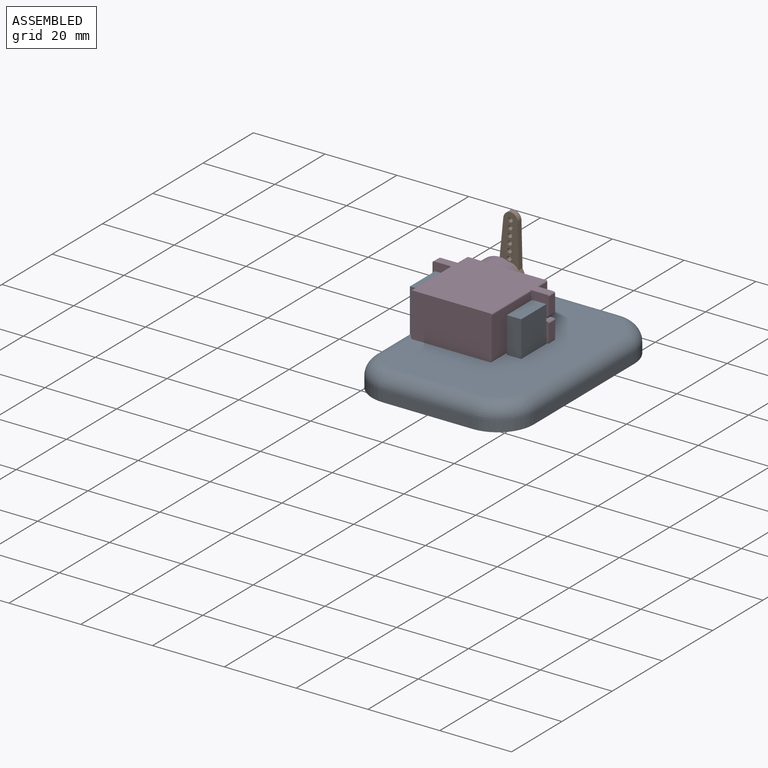
[diagram: assembled view]
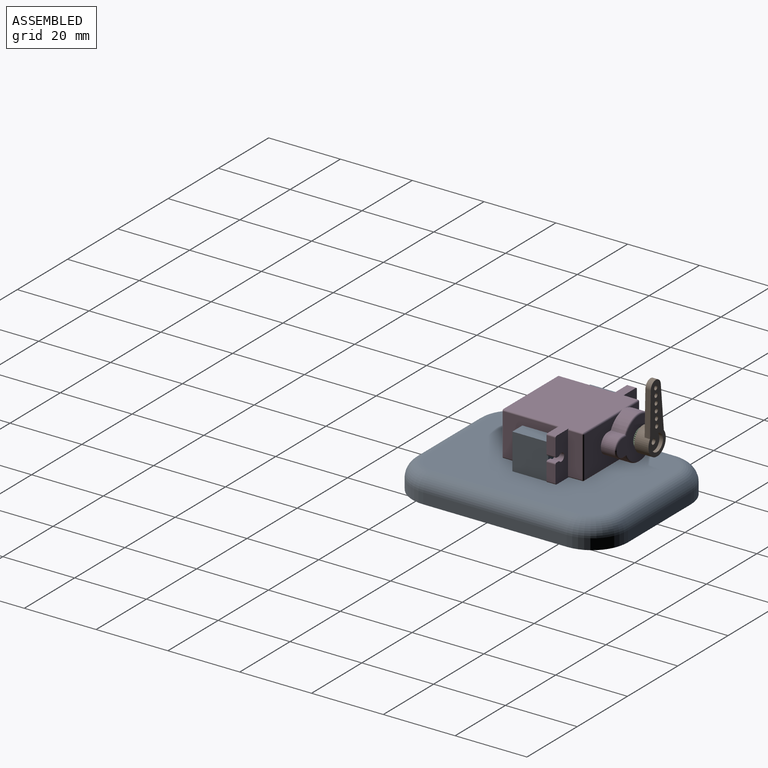
[diagram: assembled view, second angle]
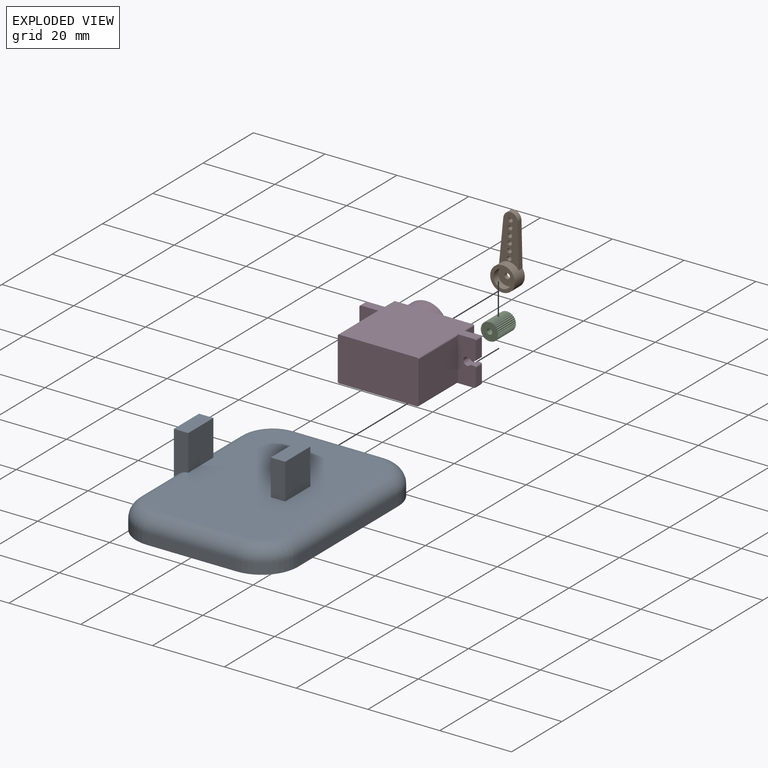
[diagram: exploded view]
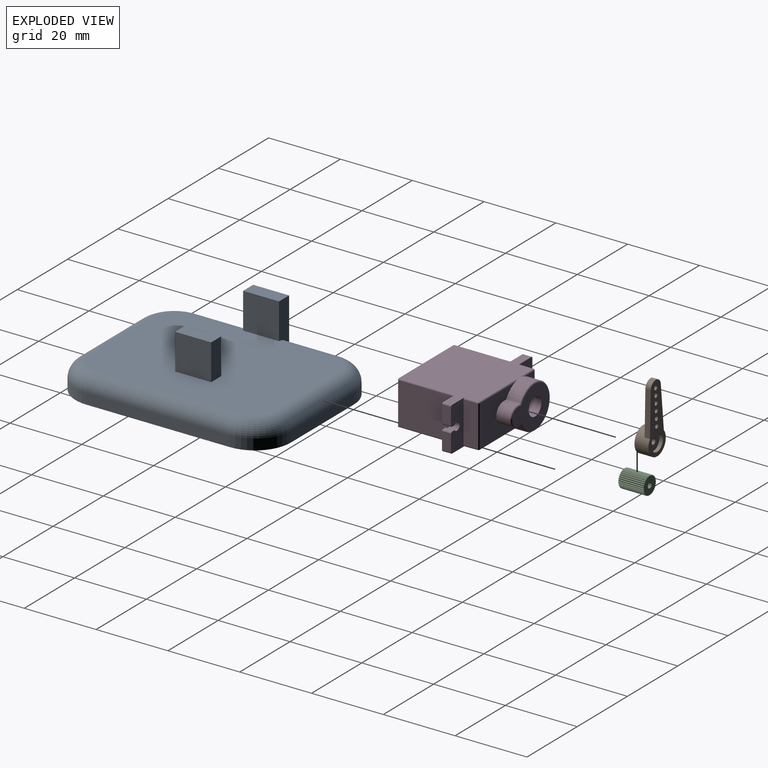
[diagram: exploded view, second angle]
ASSEMBLY  parts=4 mates=3
PART A: 28 faces, bbox 46.6x61.6x17 mm
  f0: plane 52x37mm, normal (0,0,1), area 1853.1mm2, adj f7,f8,f9,f10,f13,f19,f20,f21
  f1: plane 25x3mm, normal (0,-1,0), area 75mm2, adj f2,f15,f16,f21
  f2: plane 60x45mm, normal (0,0,-1), area 2614.2mm2, adj f1,f3,f4,f5,f15,f16,f17,f18
  f3: plane 40x3mm, normal (1,0,0), area 120mm2, adj f2,f16,f17,f23
  f4: plane 40x17mm, normal (-1,0,0), area 260mm2, adj f2,f11,f12,f14,f15,f18,f19,f27
  f5: plane 25x3mm, normal (0,1,0), area 75mm2, adj f2,f17,f18,f25
  f6: plane 10x4mm, normal (0,0,1), area 40mm2, adj f7,f8,f9,f10
  f7: plane 10x4mm, normal (0,-1,0), area 40mm2, adj f0,f6,f8,f9
  f8: plane 10x10mm, normal (1,0,0), area 100mm2, adj f0,f6,f7,f10
  f9: plane 10x10mm, normal (-1,0,0), area 100mm2, adj f0,f6,f7,f10
  f10: plane 10x4mm, normal (0,1,0), area 40mm2, adj f0,f6,f8,f9
  f11: plane 10x4mm, normal (0,0,1), area 40mm2, adj f4,f12,f13,f14
  f12: plane 14x4mm, normal (0,1,0), area 43.4mm2, adj f4,f11,f13,f27
  f13: plane 10x10mm, normal (1,0,0), area 100mm2, adj f0,f11,f12,f14
  f14: plane 14x4mm, normal (0,-1,0), area 43.4mm2, adj f4,f11,f13,f19
  f15: cylinder r=10mm len=10mm, axis (0,0,1), area 47.1mm2, adj f1,f2,f4,f20
  f16: cylinder r=10mm len=10mm, axis (0,0,-1), area 47.1mm2, adj f1,f2,f3,f22
  f17: cylinder r=10mm len=10mm, axis (0,0,1), area 47.1mm2, adj f2,f3,f5,f24
  f18: cylinder r=10mm len=10mm, axis (0,0,-1), area 47.1mm2, adj f2,f4,f5,f26
  f19: cylinder r=4mm len=15mm, axis (0,1,0), area 94.2mm2, adj f0,f4,f14,f20
  f20: torus R=6mm, axis (0,0,1), area 84.4mm2, adj f0,f15,f19,f21
  f21: cylinder r=4mm len=25mm, axis (-1,0,0), area 157.1mm2, adj f0,f1,f20,f22
  f22: torus R=6mm, axis (0,0,1), area 84.4mm2, adj f0,f16,f21,f23
  f23: cylinder r=4mm len=40mm, axis (0,-1,0), area 251.3mm2, adj f0,f3,f22,f24
  f24: torus R=6mm, axis (0,0,1), area 84.4mm2, adj f0,f17,f23,f25
  f25: cylinder r=4mm len=25mm, axis (1,0,0), area 157.1mm2, adj f0,f5,f24,f26
  f26: torus R=6mm, axis (0,0,1), area 84.4mm2, adj f0,f18,f25,f27
  f27: cylinder r=4mm len=15mm, axis (0,1,0), area 94.2mm2, adj f0,f4,f12,f26
PART B: 18 faces, bbox 19.5x6.9x3.9 mm
  f0: plane 4.65x4.65mm, normal (0,0,1), area 15.2mm2, adj f1,f7
  f1: cylinder r=0.75mm len=1.5mm, axis (0,0,-1), area 4.9mm2, adj f0,f2
  f2: plane 5x5mm, normal (0,0,-1), area 17.9mm2, adj f1,f3
  f3: cylinder r=2.5mm len=5mm, axis (0,0,-1), area 29.1mm2, adj f2,f4
  f4: plane 6.9x6.9mm, normal (0,0,-1), area 17.8mm2, adj f3,f5
  f5: cylinder r=3.45mm len=6.9mm, axis (0,0,-1), area 75mm2, adj f4,f6,f8,f9,f11
  f6: plane 19.5x6.9mm, normal (0,0,1), area 71.6mm2, adj f5,f7,f8,f9,f10,f12,f13,f14
  f7: cylinder r=2.32mm len=4.65mm, axis (0,0,-1), area 14.6mm2, adj f0,f6
  f8: plane 12.09x1.5mm, normal (0.06,1,0), area 18.2mm2, adj f5,f6,f10,f11
  f9: plane 12.09x1.5mm, normal (0.06,-1,0), area 18.2mm2, adj f5,f6,f10,f11
  f10: cylinder r=2mm len=4mm, axis (0,0,1), area 9.1mm2, adj f6,f8,f9,f11
  f11: plane 13.97x5.5mm, normal (0,0,-1), area 51.2mm2, adj f5,f8,f9,f10,f12,f13,f14,f15
  f12: cylinder r=0.6mm len=1.5mm, axis (0,0,1), area 5.7mm2, adj f6,f11
  f13: cylinder r=0.6mm len=1.5mm, axis (0,0,1), area 5.7mm2, adj f6,f11
  f14: cylinder r=0.6mm len=1.5mm, axis (0,0,1), area 5.7mm2, adj f6,f11
  f15: cylinder r=0.6mm len=1.5mm, axis (0,0,1), area 5.7mm2, adj f6,f11
  f16: cylinder r=0.6mm len=1.5mm, axis (0,0,1), area 5.7mm2, adj f6,f11
  f17: cylinder r=0.6mm len=1.5mm, axis (0,0,1), area 5.7mm2, adj f6,f11
PART C: 99 faces, bbox 5x5x7.1 mm
  f0: plane 5x5mm, normal (0,0,-1), area 16.5mm2, adj f1,f2,f3,f4,f5,f6,f7,f8
  f1: plane 7.05x0.2mm, normal (-0.8,0.6,0), area 1.7mm2, adj f0,f2,f94,f95
  f2: cylinder r=0.08mm len=7.05mm, axis (0,0,-1), area 0.9mm2, adj f0,f1,f3,f94
  f3: plane 7.05x0.21mm, normal (-0.51,-0.86,0), area 1.7mm2, adj f0,f2,f4,f94
  f4: plane 7.05x0.22mm, normal (-0.9,0.43,0), area 1.7mm2, adj f0,f3,f5,f94
  f5: cylinder r=0.08mm len=7.05mm, axis (0,0,-1), area 0.9mm2, adj f0,f4,f6,f94
  f6: plane 7.05x0.23mm, normal (-0.33,-0.94,0), area 1.7mm2, adj f0,f5,f7,f94
  f7: plane 7.05x0.24mm, normal (-0.97,0.25,0), area 1.7mm2, adj f0,f6,f8,f94
  f8: cylinder r=0.08mm len=7.05mm, axis (0,0,-1), area 0.9mm2, adj f0,f7,f9,f94
  f9: plane 7.05x0.25mm, normal (-0.14,-0.99,0), area 1.7mm2, adj f0,f8,f10,f94
  f10: plane 7.05x0.25mm, normal (-1,0.05,0), area 1.7mm2, adj f0,f9,f11,f94
  f11: cylinder r=0.08mm len=7.05mm, axis (0,0,-1), area 0.9mm2, adj f0,f10,f12,f94
  f12: plane 7.05x0.25mm, normal (0.05,-1,0), area 1.7mm2, adj f0,f11,f13,f94
  f13: plane 7.05x0.25mm, normal (-0.99,-0.14,0), area 1.7mm2, adj f0,f12,f14,f94
  f14: cylinder r=0.08mm len=7.05mm, axis (0,0,-1), area 0.9mm2, adj f0,f13,f15,f94
  f15: plane 7.05x0.24mm, normal (0.25,-0.97,0), area 1.7mm2, adj f0,f14,f16,f94
  f16: plane 7.05x0.23mm, normal (-0.94,-0.33,0), area 1.7mm2, adj f0,f15,f17,f94
  f17: cylinder r=0.08mm len=7.05mm, axis (0,0,-1), area 0.9mm2, adj f0,f16,f18,f94
  f18: plane 7.05x0.22mm, normal (0.43,-0.9,0), area 1.7mm2, adj f0,f17,f19,f94
  f19: plane 7.05x0.21mm, normal (-0.86,-0.51,0), area 1.7mm2, adj f0,f18,f20,f94
  f20: cylinder r=0.08mm len=7.05mm, axis (0,0,-1), area 0.9mm2, adj f0,f19,f21,f94
  f21: plane 7.05x0.2mm, normal (0.6,-0.8,0), area 1.7mm2, adj f0,f20,f22,f94
  f22: plane 7.05x0.18mm, normal (-0.74,-0.67,0), area 1.7mm2, adj f0,f21,f23,f94
  f23: cylinder r=0.08mm len=7.05mm, axis (0,0,-1), area 0.9mm2, adj f0,f22,f24,f94
  f24: plane 7.05x0.18mm, normal (0.74,-0.67,0), area 1.7mm2, adj f0,f23,f25,f94
  f25: plane 7.05x0.2mm, normal (-0.6,-0.8,0), area 1.7mm2, adj f0,f24,f26,f94
  f26: cylinder r=0.08mm len=7.05mm, axis (0,0,-1), area 0.9mm2, adj f0,f25,f27,f94
  f27: plane 7.05x0.21mm, normal (0.86,-0.51,0), area 1.7mm2, adj f0,f26,f28,f94
  f28: plane 7.05x0.22mm, normal (-0.43,-0.9,0), area 1.7mm2, adj f0,f27,f29,f94
  f29: cylinder r=0.08mm len=7.05mm, axis (0,0,-1), area 0.9mm2, adj f0,f28,f30,f94
  f30: plane 7.05x0.23mm, normal (0.94,-0.33,0), area 1.7mm2, adj f0,f29,f31,f94
  f31: plane 7.05x0.24mm, normal (-0.25,-0.97,0), area 1.7mm2, adj f0,f30,f32,f94
  f32: cylinder r=0.08mm len=7.05mm, axis (0,0,-1), area 0.9mm2, adj f0,f31,f33,f94
  f33: plane 7.05x0.25mm, normal (0.99,-0.14,0), area 1.7mm2, adj f0,f32,f34,f94
  f34: plane 7.05x0.25mm, normal (-0.05,-1,0), area 1.7mm2, adj f0,f33,f35,f94
  f35: cylinder r=0.08mm len=7.05mm, axis (0,0,-1), area 0.9mm2, adj f0,f34,f36,f94
  f36: plane 7.05x0.25mm, normal (1,0.05,0), area 1.7mm2, adj f0,f35,f37,f94
  f37: plane 7.05x0.25mm, normal (0.14,-0.99,0), area 1.7mm2, adj f0,f36,f38,f94
  f38: cylinder r=0.08mm len=7.05mm, axis (0,0,-1), area 0.9mm2, adj f0,f37,f39,f94
  f39: plane 7.05x0.24mm, normal (0.97,0.25,0), area 1.7mm2, adj f0,f38,f40,f94
  f40: plane 7.05x0.23mm, normal (0.33,-0.94,0), area 1.7mm2, adj f0,f39,f41,f94
  f41: cylinder r=0.08mm len=7.05mm, axis (0,0,-1), area 0.9mm2, adj f0,f40,f42,f94
  f42: plane 7.05x0.22mm, normal (0.9,0.43,0), area 1.7mm2, adj f0,f41,f43,f94
  f43: plane 7.05x0.21mm, normal (0.51,-0.86,0), area 1.7mm2, adj f0,f42,f44,f94
  f44: cylinder r=0.08mm len=7.05mm, axis (0,0,-1), area 0.9mm2, adj f0,f43,f45,f94
  f45: plane 7.05x0.2mm, normal (0.8,0.6,0), area 1.7mm2, adj f0,f44,f46,f94
  f46: plane 7.05x0.18mm, normal (0.67,-0.74,0), area 1.7mm2, adj f0,f45,f47,f94
  f47: cylinder r=0.08mm len=7.05mm, axis (0,0,-1), area 0.9mm2, adj f0,f46,f48,f94
  f48: plane 7.05x0.18mm, normal (0.67,0.74,0), area 1.7mm2, adj f0,f47,f49,f94
  f49: plane 7.05x0.2mm, normal (0.8,-0.6,0), area 1.7mm2, adj f0,f48,f50,f94
  f50: cylinder r=0.08mm len=7.05mm, axis (0,0,-1), area 0.9mm2, adj f0,f49,f51,f94
  f51: plane 7.05x0.21mm, normal (0.51,0.86,0), area 1.7mm2, adj f0,f50,f52,f94
  f52: plane 7.05x0.22mm, normal (0.9,-0.43,0), area 1.7mm2, adj f0,f51,f53,f94
  f53: cylinder r=0.08mm len=7.05mm, axis (0,0,-1), area 0.9mm2, adj f0,f52,f54,f94
  f54: plane 7.05x0.23mm, normal (0.33,0.94,0), area 1.7mm2, adj f0,f53,f55,f94
  f55: plane 7.05x0.24mm, normal (0.97,-0.25,0), area 1.7mm2, adj f0,f54,f56,f94
  f56: cylinder r=0.08mm len=7.05mm, axis (0,0,-1), area 0.9mm2, adj f0,f55,f57,f94
  f57: plane 7.05x0.25mm, normal (0.14,0.99,0), area 1.7mm2, adj f0,f56,f58,f94
  f58: plane 7.05x0.25mm, normal (1,-0.05,0), area 1.7mm2, adj f0,f57,f59,f94
  f59: cylinder r=0.08mm len=7.05mm, axis (0,0,-1), area 0.9mm2, adj f0,f58,f60,f94
  f60: plane 7.05x0.25mm, normal (-0.05,1,0), area 1.7mm2, adj f0,f59,f61,f94
  f61: plane 7.05x0.25mm, normal (0.99,0.14,0), area 1.7mm2, adj f0,f60,f62,f94
  f62: cylinder r=0.08mm len=7.05mm, axis (0,0,-1), area 0.9mm2, adj f0,f61,f63,f94
  f63: plane 7.05x0.24mm, normal (-0.25,0.97,0), area 1.7mm2, adj f0,f62,f64,f94
  f64: plane 7.05x0.23mm, normal (0.94,0.33,0), area 1.7mm2, adj f0,f63,f65,f94
  f65: cylinder r=0.08mm len=7.05mm, axis (0,0,-1), area 0.9mm2, adj f0,f64,f66,f94
  f66: plane 7.05x0.22mm, normal (-0.43,0.9,0), area 1.7mm2, adj f0,f65,f67,f94
  f67: plane 7.05x0.21mm, normal (0.86,0.51,0), area 1.7mm2, adj f0,f66,f68,f94
  f68: cylinder r=0.08mm len=7.05mm, axis (0,0,-1), area 0.9mm2, adj f0,f67,f69,f94
  f69: plane 7.05x0.2mm, normal (-0.6,0.8,0), area 1.7mm2, adj f0,f68,f70,f94
  f70: plane 7.05x0.18mm, normal (0.74,0.67,0), area 1.7mm2, adj f0,f69,f71,f94
  f71: cylinder r=0.08mm len=7.05mm, axis (0,0,-1), area 0.9mm2, adj f0,f70,f72,f94
  f72: plane 7.05x0.18mm, normal (-0.74,0.67,0), area 1.7mm2, adj f0,f71,f73,f94
  f73: plane 7.05x0.2mm, normal (0.6,0.8,0), area 1.7mm2, adj f0,f72,f74,f94
  f74: cylinder r=0.08mm len=7.05mm, axis (0,0,-1), area 0.9mm2, adj f0,f73,f75,f94
  f75: plane 7.05x0.21mm, normal (-0.86,0.51,0), area 1.7mm2, adj f0,f74,f76,f94
  f76: plane 7.05x0.22mm, normal (0.43,0.9,0), area 1.7mm2, adj f0,f75,f77,f94
  f77: cylinder r=0.08mm len=7.05mm, axis (0,0,-1), area 0.9mm2, adj f0,f76,f78,f94
  f78: plane 7.05x0.23mm, normal (-0.94,0.33,0), area 1.7mm2, adj f0,f77,f79,f94
  f79: plane 7.05x0.24mm, normal (0.25,0.97,0), area 1.7mm2, adj f0,f78,f80,f94
  f80: cylinder r=0.08mm len=7.05mm, axis (0,0,-1), area 0.9mm2, adj f0,f79,f81,f94
  f81: plane 7.05x0.25mm, normal (-0.99,0.14,0), area 1.7mm2, adj f0,f80,f82,f94
  f82: plane 7.05x0.25mm, normal (0.05,1,0), area 1.7mm2, adj f0,f81,f83,f94
  f83: cylinder r=0.08mm len=7.05mm, axis (0,0,-1), area 0.9mm2, adj f0,f82,f84,f94
  f84: plane 7.05x0.25mm, normal (-1,-0.05,0), area 1.7mm2, adj f0,f83,f85,f94
  f85: plane 7.05x0.25mm, normal (-0.14,0.99,0), area 1.7mm2, adj f0,f84,f86,f94
  f86: cylinder r=0.08mm len=7.05mm, axis (0,0,-1), area 0.9mm2, adj f0,f85,f87,f94
  f87: plane 7.05x0.24mm, normal (-0.97,-0.25,0), area 1.7mm2, adj f0,f86,f88,f94
  f88: plane 7.05x0.23mm, normal (-0.33,0.94,0), area 1.7mm2, adj f0,f87,f89,f94
  f89: cylinder r=0.08mm len=7.05mm, axis (0,0,-1), area 0.9mm2, adj f0,f88,f90,f94
  f90: plane 7.05x0.22mm, normal (-0.9,-0.43,0), area 1.7mm2, adj f0,f89,f91,f94
  f91: plane 7.05x0.21mm, normal (-0.51,0.86,0), area 1.7mm2, adj f0,f90,f92,f94
  f92: cylinder r=0.08mm len=7.05mm, axis (0,0,-1), area 0.9mm2, adj f0,f91,f93,f94
  f93: plane 7.05x0.2mm, normal (-0.8,-0.6,0), area 1.7mm2, adj f0,f92,f94,f96
  f94: plane 5x5mm, normal (0,0,1), area 16.5mm2, adj f1,f2,f3,f4,f5,f6,f7,f8
  f95: plane 7.05x0.18mm, normal (-0.67,-0.74,0), area 1.7mm2, adj f0,f1,f94,f97
  f96: plane 7.05x0.18mm, normal (-0.67,0.74,0), area 1.7mm2, adj f0,f93,f94,f97
  f97: cylinder r=0.08mm len=7.05mm, axis (0,0,-1), area 0.9mm2, adj f0,f94,f95,f96
  f98: cylinder r=0.75mm len=7.05mm, axis (0,0,-1), area 33.2mm2, adj f0,f94
PART D: 64 faces, bbox 13.2x32.4x26.7 mm
  f0: plane 3.52x3.52mm, normal (0,0,1), area 4.4mm2, adj f4,f7,f57
  f1: plane 3.52x3.52mm, normal (0,0,1), area 4.4mm2, adj f5,f8,f57
  f2: plane 13.72x11.39mm, normal (0,0,1), area 107.7mm2, adj f3,f6,f47,f53,f54,f57,f58
  f3: cylinder r=0.4mm len=15.89mm, axis (0,1,0), area 9.3mm2, adj f2,f17,f45,f57
  f4: cylinder r=0.4mm len=5.69mm, axis (0,1,0), area 2.9mm2, adj f0,f17,f50,f57
  f5: cylinder r=0.4mm len=5.69mm, axis (0,1,0), area 2.9mm2, adj f1,f15,f51,f57
  f6: cylinder r=0.4mm len=15.89mm, axis (0,1,0), area 9.3mm2, adj f2,f15,f49,f57
  f7: cylinder r=0.4mm len=5.69mm, axis (-1,0,0), area 2.9mm2, adj f0,f16,f50,f57
  f8: cylinder r=0.4mm len=5.69mm, axis (-1,0,0), area 2.9mm2, adj f1,f16,f51,f57
  f9: plane 4.73x2.5mm, normal (0,1,0.01), area 11.8mm2, adj f11,f12,f32,f36
  f10: plane 4.73x2.5mm, normal (0,1,0.01), area 11.8mm2, adj f11,f12,f33,f37
  f11: plane 12.3x5.35mm, normal (0,0,-1), area 55.4mm2, adj f9,f10,f15,f17,f22,f29,f30,f31
  f12: plane 12.26x5.35mm, normal (0,0,1), area 55.2mm2, adj f9,f10,f15,f16,f17,f29,f30,f31
  f13: plane 4.73x2.5mm, normal (0,-1,0.01), area 11.8mm2, adj f14,f25,f34,f38
  f14: plane 12.26x5.35mm, normal (0,0,1), area 55.2mm2, adj f13,f15,f17,f18,f24,f26,f27,f28
  f15: plane 31.6x6.4mm, normal (1,0,0.01), area 163.4mm2, adj f5,f6,f11,f12,f14,f23,f25,f36
  f16: plane 11.46x3.9mm, normal (0,1,0.01), area 44.6mm2, adj f7,f8,f12,f48,f52
  f17: plane 31.6x6.4mm, normal (-1,0,0.01), area 163.4mm2, adj f3,f4,f11,f12,f14,f21,f25,f37
  f18: plane 11.46x3.9mm, normal (0,-1,0.01), area 44.6mm2, adj f14,f44,f46,f47
  f19: plane 22.5x12.3mm, normal (0,0,-1), area 276.6mm2, adj f20,f21,f22,f23,f40,f41,f42,f43
  f20: plane 15.7x11.5mm, normal (0,-1,0), area 180.5mm2, adj f19,f25,f42,f43
  f21: plane 21.7x15.7mm, normal (-1,0,0), area 340.7mm2, adj f17,f19,f41,f42
  f22: plane 15.7x11.5mm, normal (0,1,0), area 180.5mm2, adj f11,f19,f40,f41
  f23: plane 21.7x15.7mm, normal (1,0,0), area 340.7mm2, adj f15,f19,f40,f43
  f24: plane 4.73x2.5mm, normal (0,-1,0.01), area 11.8mm2, adj f14,f25,f35,f39
  f25: plane 12.3x5.35mm, normal (0,0,-1), area 55.4mm2, adj f13,f15,f17,f20,f24,f26,f27,f28
  f26: cylinder r=1.1mm len=2.5mm, axis (0,0,1), area 14mm2, adj f14,f25,f27,f28
  f27: plane 2.5x1.04mm, normal (1,0,0), area 2.6mm2, adj f14,f25,f26,f34
  f28: plane 2.5x1.04mm, normal (-1,0,0), area 2.6mm2, adj f14,f25,f26,f35
  f29: plane 2.5x1.04mm, normal (-1,0,0), area 2.6mm2, adj f11,f12,f31,f32
  f30: plane 2.5x1.04mm, normal (1,0,0), area 2.6mm2, adj f11,f12,f31,f33
  f31: cylinder r=1.1mm len=2.5mm, axis (0,0,1), area 14mm2, adj f11,f12,f29,f30
  f32: cylinder r=0.4mm len=2.51mm, axis (0,0.01,-1), area 1.6mm2, adj f9,f11,f12,f29
  f33: cylinder r=0.4mm len=2.51mm, axis (0,-0.01,1), area 1.6mm2, adj f10,f11,f12,f30
  f34: cylinder r=0.4mm len=2.51mm, axis (0,0.01,1), area 1.6mm2, adj f13,f14,f25,f27
  f35: cylinder r=0.4mm len=2.51mm, axis (0,-0.01,-1), area 1.6mm2, adj f14,f24,f25,f28
  f36: cylinder r=0.4mm len=2.5mm, axis (0.01,0.01,-1), area 1.6mm2, adj f9,f11,f12,f15
  f37: cylinder r=0.4mm len=2.5mm, axis (-0.01,0.01,-1), area 1.6mm2, adj f10,f11,f12,f17
  f38: cylinder r=0.4mm len=2.5mm, axis (-0.01,-0.01,-1), area 1.6mm2, adj f13,f14,f17,f25
  f39: cylinder r=0.4mm len=2.5mm, axis (0.01,-0.01,-1), area 1.6mm2, adj f14,f15,f24,f25
  f40: cylinder r=0.4mm len=15.7mm, axis (0,0,-1), area 9.9mm2, adj f11,f19,f22,f23
  f41: cylinder r=0.4mm len=15.7mm, axis (0,0,1), area 9.9mm2, adj f11,f19,f21,f22
  f42: cylinder r=0.4mm len=15.7mm, axis (0,0,-1), area 9.9mm2, adj f19,f20,f21,f25
  f43: cylinder r=0.4mm len=15.7mm, axis (0,0,1), area 9.9mm2, adj f19,f20,f23,f25
  f44: cylinder r=0.4mm len=3.91mm, axis (-0.01,-0.01,-1), area 2.5mm2, adj f14,f17,f18,f45
  f45: sphere r=0.4mm, area 0.2mm2, adj f3,f44,f47
  f46: cylinder r=0.4mm len=3.91mm, axis (0.01,-0.01,-1), area 2.5mm2, adj f14,f15,f18,f49
  f47: cylinder r=0.4mm len=11.39mm, axis (-1,0,0), area 7.1mm2, adj f2,f18,f45,f49
  f48: cylinder r=0.4mm len=3.91mm, axis (-0.01,0.01,-1), area 2.5mm2, adj f12,f16,f17,f50
  f49: sphere r=0.4mm, area 0.2mm2, adj f6,f46,f47
  f50: sphere r=0.4mm, area 0.2mm2, adj f4,f7,f48
  f51: sphere r=0.4mm, area 0.2mm2, adj f5,f8,f52
  f52: cylinder r=0.4mm len=3.91mm, axis (0.01,0.01,-1), area 2.5mm2, adj f12,f15,f16,f51
  f53: plane 3.8x1.22mm, normal (-1,0,0), area 4.6mm2, adj f2,f54,f57,f61
  f54: cylinder r=2.75mm len=5.5mm, axis (0,0,-1), area 32.8mm2, adj f2,f53,f58,f63
  f55: plane 14.7x11.39mm, normal (0,0,1), area 96.2mm2, adj f56,f60,f61,f62,f63
  f56: cylinder r=2.5mm len=5mm, axis (0,0,-1), area 66mm2, adj f55,f59
  f57: cylinder r=6.09mm len=12.19mm, axis (0,0,-1), area 125.9mm2, adj f0,f1,f2,f3,f4,f5,f6,f7
  f58: plane 3.8x1.22mm, normal (1,0,0), area 4.6mm2, adj f2,f54,f57,f62
  f59: plane 5x5mm, normal (0,0,1), area 19.6mm2, adj f56
  f60: torus R=5.69mm, axis (0,0,1), area 20.1mm2, adj f55,f57,f61,f62
  f61: cylinder r=0.4mm len=1.47mm, axis (0,1,0), area 0.8mm2, adj f53,f55,f60,f63
  f62: cylinder r=0.4mm len=1.47mm, axis (0,-1,0), area 0.8mm2, adj f55,f58,f60,f63
  f63: torus R=2.35mm, axis (0,0,1), area 5.1mm2, adj f54,f55,f61,f62
PLACE A t=(62.45,24.59,30.99)mm fixed
PLACE B rot(axis=(-0.59,-0.57,-0.57),118.8deg) t=(45.25,29.59,35.93)mm
PLACE C rot(axis=(-1,0.02,0.02),90deg) t=(50.54,29.59,40.83)mm
PLACE D rot(axis=(-0.58,0.58,0.58),120deg) t=(55.45,29.59,35.74)mm
MATE revolute C.f98 <-> D.f56  axis (0,-1,0) through (50.35,36.39,35.74)mm
MATE fastened B.f1 <-> C.f98  axis (0,-1,0) through (50.35,43.44,35.74)mm
MATE fastened D.f25 <-> A.f10  axis (0,-1,0) through (66.7,29.59,29.99)mm
